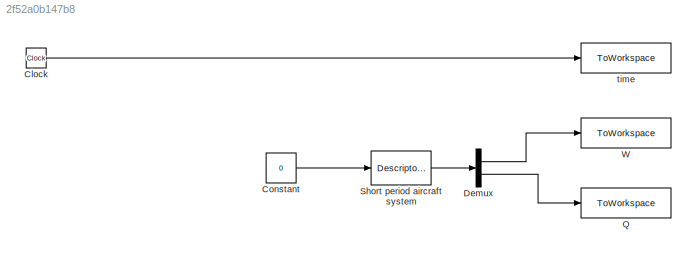
MODEL slx_2f52a0b147b8
KIND model
CONFIG AbsTol = auto
CONFIG EnableMultiTasking = off
CONFIG FixedStep = auto
CONFIG MaxStep = auto
CONFIG MinStep = auto
CONFIG RelTol = 1e-3
CONFIG SampleTimeConstraint = Unconstrained
CONFIG SolverName = VariableStepAuto
CONFIG StartTime = 0.0
CONFIG StopTime = 10.0
BLOCK [Clock] Clock
BLOCK [Constant] Constant
  Value = 0
BLOCK [Demux] Demux
  Outputs = 2
  Ports = [1, 2]
BLOCK [ToWorkspace] Q
  FixptAsFi = on
  MaxDataPoints = inf
  Ports = [1]
  SampleTime = -1
  SaveFormat = Timeseries
  VariableName = Q
BLOCK [DescriptorStateSpace] Short period aircraft system
  A = AShortPeriod
  B = BShortPeriod
  C = CShortPeriod
  D = DShortPeriod
  E = EShordPeriod
  InitialCondition = [0,1]
  Ports = [1, 1]
BLOCK [ToWorkspace] W
  FixptAsFi = on
  MaxDataPoints = inf
  Ports = [1]
  SampleTime = -1
  SaveFormat = Timeseries
  VariableName = W
BLOCK [ToWorkspace] time
  FixptAsFi = on
  MaxDataPoints = inf
  Ports = [1]
  SampleTime = -1
  SaveFormat = Timeseries
  VariableName = time
LINE Clock:1 -> time:1
LINE Constant:1 -> Short period aircraft system:1
LINE Demux:1 -> W:1
LINE Demux:2 -> Q:1
LINE Short period aircraft system:1 -> Demux:1
